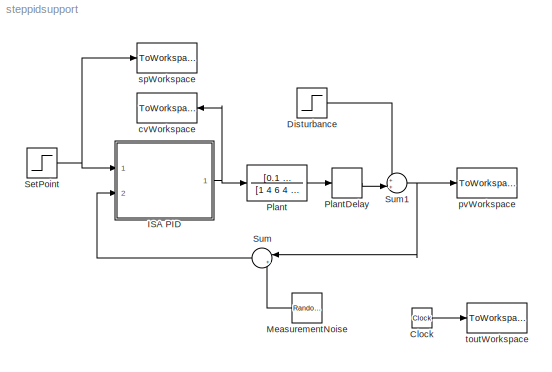
MODEL steppidsupport
KIND model
BLOCK [Clock] Clock
  SID = 1
BLOCK [Step] Disturbance
  After = 0.1
  SID = 2
  SampleTime = 0
  Time = 19.9422
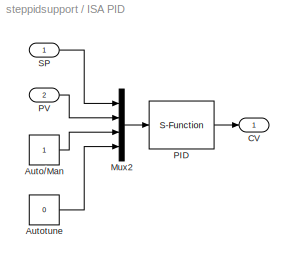
BLOCK [SubSystem] ISA PID
  Ports = [2, 1]
  RequestExecContextInheritance = off
  SID = 3
BLOCK [Constant] ISA PID/Auto//Man
  SID = 6
BLOCK [Constant] ISA PID/Autotune
  SID = 7
  Value = 0
BLOCK [Outport] ISA PID/CV
  IconDisplay = Port number
  SID = 10
BLOCK [Mux] ISA PID/Mux2
  DisplayOption = bar
  Ports = [4, 1]
  SID = 8
BLOCK [S-Function] ISA PID/PID
  EnableBusSupport = off
  FunctionName = pid_isatd
  Parameters = Ts,umin,umax,As,histLevel
  Ports = [1, 1]
  SFcnIsStateOwnerBlock = off
  SFunctionDeploymentMode = off
  SID = 9
BLOCK [Inport] ISA PID/PV
  IconDisplay = Port number
  Port = 2
  SID = 5
BLOCK [Inport] ISA PID/SP
  IconDisplay = Port number
  SID = 4
BLOCK [RandomNumber] MeasurementNoise
  SID = 11
  SampleTime = 0
  Variance = 0
BLOCK [TransferFcn] Plant
  Denominator = [1  4  6  4  1]
  Numerator = [0.1           1]
  SID = 12
BLOCK [TransportDelay] PlantDelay
  DelayTime = 0.75
  Ports = [1, 1]
  SID = 13
BLOCK [Step] SetPoint
  SID = 14
  SampleTime = 0
  Time = 0
BLOCK [Sum] Sum
  IconShape = round
  Inputs = |++
  Ports = [2, 1]
  SID = 15
BLOCK [Sum] Sum1
  IconShape = round
  Inputs = ++|
  Ports = [2, 1]
  SID = 16
BLOCK [ToWorkspace] cvWorkspace
  MaxDataPoints = inf
  Ports = [1]
  SID = 17
  SampleTime = 0.019995
  VariableName = cvVec
BLOCK [ToWorkspace] pvWorkspace
  MaxDataPoints = inf
  Ports = [1]
  SID = 18
  SampleTime = 0.019995
  VariableName = pvVec
BLOCK [ToWorkspace] spWorkspace
  MaxDataPoints = inf
  Ports = [1]
  SID = 19
  SampleTime = 0.019995
  VariableName = spVec
BLOCK [ToWorkspace] toutWorkspace
  MaxDataPoints = inf
  Ports = [1]
  SID = 20
  SampleTime = 0.019995
  VariableName = tout
LINE Clock:1 -> toutWorkspace:1
LINE Disturbance:1 -> Sum1:1
LINE ISA PID/Auto//Man:1 -> ISA PID/Mux2:3
LINE ISA PID/Autotune:1 -> ISA PID/Mux2:4
LINE ISA PID/Mux2:1 -> ISA PID/PID:1
LINE ISA PID/PID:1 -> ISA PID/CV:1
LINE ISA PID/PV:1 -> ISA PID/Mux2:2
LINE ISA PID/SP:1 -> ISA PID/Mux2:1
NET ISA PID:1 -> Plant:1, cvWorkspace:1
LINE MeasurementNoise:1 -> Sum:2
LINE Plant:1 -> PlantDelay:1
LINE PlantDelay:1 -> Sum1:2
NET SetPoint:1 -> ISA PID:1, spWorkspace:1
NET Sum1:1 -> Sum:1, pvWorkspace:1
LINE Sum:1 -> ISA PID:2
note: NET lines group one-source signal fan-out (src -> all destinations, sorted); 1:1 wires keep LINE
